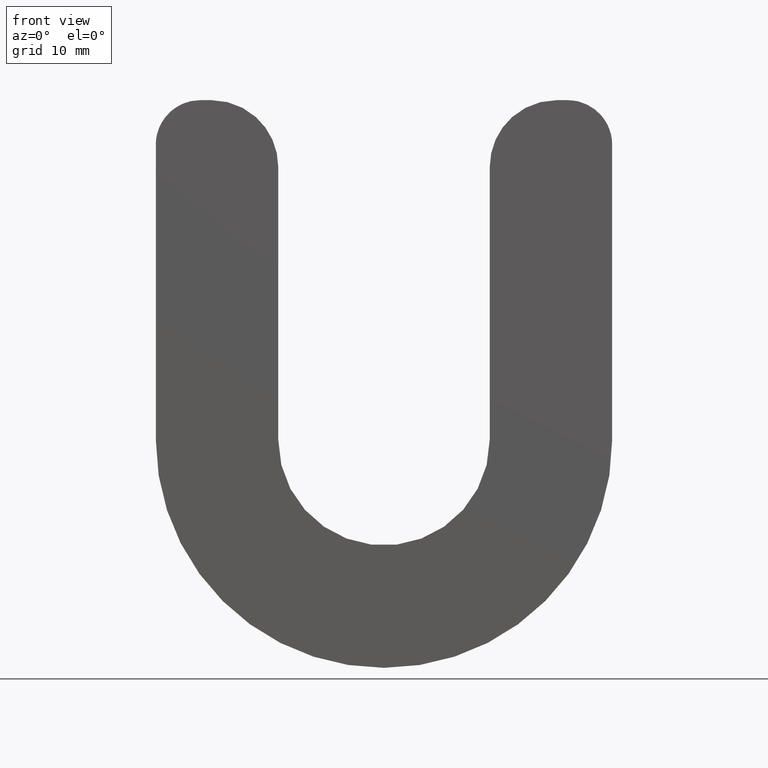
[diagram: clean part render]
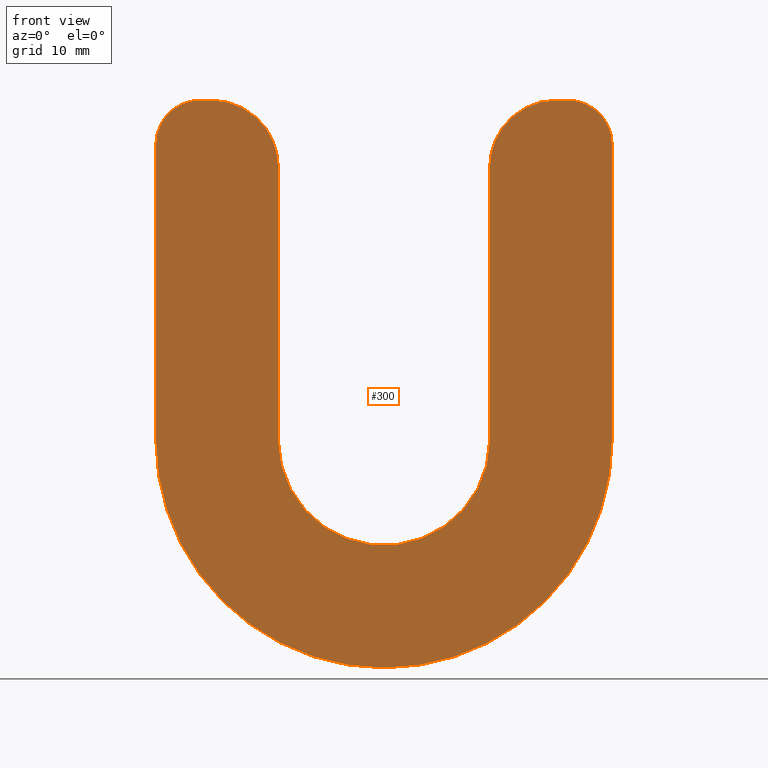
[diagram: same view with one face highlighted and labeled with its STEP entity id]
A machine part, front view. The second image highlights one B-rep face of the part: STEP entity #300.
In plain terms, the highlighted planar face has unit normal (0, 1, 0).
Its self-contained STEP definition (entity closure, byte-faithful):
#5 = CARTESIAN_POINT ( 'NONE',  ( 6.938893903907228400E-015, 0.0000000000000000000, 9.500000000000008900 ) ) ;
#6 = DIRECTION ( 'NONE',  ( 0.0000000000000000000, 0.0000000000000000000, 1.000000000000000000 ) ) ;
#12 = EDGE_LOOP ( 'NONE', ( #1223, #339, #600, #54, #102, #608, #1239, #138, #633, #507, #455, #1152, #1136, #634, #867 ) ) ;
#23 = DIRECTION ( 'NONE',  ( 0.0000000000000000000, 0.0000000000000000000, 1.000000000000000000 ) ) ;
#54 = ORIENTED_EDGE ( 'NONE', *, *, #251, .T. ) ;
#59 = AXIS2_PLACEMENT_3D ( 'NONE', #186, #853, #282 ) ;
#62 = AXIS2_PLACEMENT_3D ( 'NONE', #182, #579, #1257 ) ;
#64 = CARTESIAN_POINT ( 'NONE',  ( -20.49999999999999600, 0.0000000000000000000, 9.500000000000010700 ) ) ;
#65 = LINE ( 'NONE', #137, #360 ) ;
#85 = CIRCLE ( 'NONE', #766, 20.50000000000000400 ) ;
#96 = AXIS2_PLACEMENT_3D ( 'NONE', #316, #997, #408 ) ;
#97 = CARTESIAN_POINT ( 'NONE',  ( 15.50000000000002300, 0.0000000000000000000, 33.99999999999998600 ) ) ;
#102 = ORIENTED_EDGE ( 'NONE', *, *, #473, .T. ) ;
#107 = DIRECTION ( 'NONE',  ( 0.0000000000000000000, 0.0000000000000000000, 1.000000000000000000 ) ) ;
#122 = CARTESIAN_POINT ( 'NONE',  ( 9.500000000000016000, 0.0000000000000000000, 9.500000000000005300 ) ) ;
#137 = CARTESIAN_POINT ( 'NONE',  ( -20.49999999999999600, 0.0000000000000000000, 9.500000000000010700 ) ) ;
#138 = ORIENTED_EDGE ( 'NONE', *, *, #355, .F. ) ;
#159 = VERTEX_POINT ( 'NONE', #64 ) ;
#163 = AXIS2_PLACEMENT_3D ( 'NONE', #1193, #605, #23 ) ;
#173 = EDGE_CURVE ( 'NONE', #178, #1018, #238, .T. ) ;
#178 = VERTEX_POINT ( 'NONE', #669 ) ;
#182 = CARTESIAN_POINT ( 'NONE',  ( 16.50000000000001800, 0.0000000000000000000, 35.99999999999999300 ) ) ;
#186 = CARTESIAN_POINT ( 'NONE',  ( -15.50000000000000200, 0.0000000000000000000, 33.99999999999999300 ) ) ;
#192 = VERTEX_POINT ( 'NONE', #291 ) ;
#211 = AXIS2_PLACEMENT_3D ( 'NONE', #875, #592, #6 ) ;
#223 = VERTEX_POINT ( 'NONE', #945 ) ;
#226 = DIRECTION ( 'NONE',  ( 0.0000000000000000000, 0.0000000000000000000, 1.000000000000000000 ) ) ;
#234 = EDGE_CURVE ( 'NONE', #451, #1018, #935, .T. ) ;
#238 = CIRCLE ( 'NONE', #62, 4.000000000000003600 ) ;
#251 = EDGE_CURVE ( 'NONE', #451, #453, #1011, .T. ) ;
#258 = VERTEX_POINT ( 'NONE', #470 ) ;
#281 = VERTEX_POINT ( 'NONE', #405 ) ;
#282 = DIRECTION ( 'NONE',  ( -2.602085213965211400E-015, 0.0000000000000000000, 1.000000000000000000 ) ) ;
#291 = CARTESIAN_POINT ( 'NONE',  ( -16.49999999999998900, 0.0000000000000000000, 39.99999999999999300 ) ) ;
#300 = ADVANCED_FACE ( 'NONE', ( #396 ), #795, .F. ) ;
#306 = VECTOR ( 'NONE', #715, 1000.000000000000000 ) ;
#316 = CARTESIAN_POINT ( 'NONE',  ( -15.50000000000000200, 0.0000000000000000000, 33.99999999999999300 ) ) ;
#318 = DIRECTION ( 'NONE',  ( 0.0000000000000000000, -0.0000000000000000000, 1.000000000000000000 ) ) ;
#320 = AXIS2_PLACEMENT_3D ( 'NONE', #97, #1180, #502 ) ;
#339 = ORIENTED_EDGE ( 'NONE', *, *, #173, .T. ) ;
#355 = EDGE_CURVE ( 'NONE', #573, #1190, #1085, .T. ) ;
#360 = VECTOR ( 'NONE', #807, 1000.000000000000000 ) ;
#370 = CARTESIAN_POINT ( 'NONE',  ( 20.50000000000001800, 0.0000000000000000000, 40.00000000000002100 ) ) ;
#384 = AXIS2_PLACEMENT_3D ( 'NONE', #5, #689, #107 ) ;
#396 = FACE_OUTER_BOUND ( 'NONE', #12, .T. ) ;
#398 = CARTESIAN_POINT ( 'NONE',  ( 15.49999999999998000, 0.0000000000000000000, 39.99999999999998600 ) ) ;
#405 = CARTESIAN_POINT ( 'NONE',  ( 20.50000000000001100, 0.0000000000000000000, 9.500000000000005300 ) ) ;
#408 = DIRECTION ( 'NONE',  ( 1.734723475976807700E-015, 0.0000000000000000000, 1.000000000000000000 ) ) ;
#433 = VECTOR ( 'NONE', #488, 1000.000000000000000 ) ;
#451 = VERTEX_POINT ( 'NONE', #398 ) ;
#453 = VERTEX_POINT ( 'NONE', #984 ) ;
#455 = ORIENTED_EDGE ( 'NONE', *, *, #1059, .F. ) ;
#462 = VERTEX_POINT ( 'NONE', #1201 ) ;
#470 = CARTESIAN_POINT ( 'NONE',  ( -15.50000000000000200, 0.0000000000000000000, 39.99999999999999300 ) ) ;
#473 = EDGE_CURVE ( 'NONE', #453, #462, #510, .T. ) ;
#488 = DIRECTION ( 'NONE',  ( 1.000000000000000000, -0.0000000000000000000, 6.938893903907232300E-015 ) ) ;
#490 = CARTESIAN_POINT ( 'NONE',  ( 6.938893903907228400E-015, 0.0000000000000000000, 9.500000000000008900 ) ) ;
#493 = CARTESIAN_POINT ( 'NONE',  ( -11.49833936702692600, 0.0000000000000000000, 38.47065008455297200 ) ) ;
#502 = DIRECTION ( 'NONE',  ( 0.0000000000000000000, 0.0000000000000000000, 1.000000000000000000 ) ) ;
#507 = ORIENTED_EDGE ( 'NONE', *, *, #911, .T. ) ;
#510 = CIRCLE ( 'NONE', #320, 5.999999999999998200 ) ;
#515 = CARTESIAN_POINT ( 'NONE',  ( 6.938893903907228400E-015, 0.0000000000000000000, 9.500000000000008900 ) ) ;
#537 = VERTEX_POINT ( 'NONE', #493 ) ;
#573 = VERTEX_POINT ( 'NONE', #606 ) ;
#576 = CARTESIAN_POINT ( 'NONE',  ( 9.500000000000001800, 0.0000000000000000000, 9.500000000000008900 ) ) ;
#579 = DIRECTION ( 'NONE',  ( -0.0000000000000000000, -1.000000000000000000, -0.0000000000000000000 ) ) ;
#585 = DIRECTION ( 'NONE',  ( 0.0000000000000000000, 0.0000000000000000000, 1.000000000000000000 ) ) ;
#592 = DIRECTION ( 'NONE',  ( -0.0000000000000000000, -1.000000000000000000, -0.0000000000000000000 ) ) ;
#600 = ORIENTED_EDGE ( 'NONE', *, *, #234, .F. ) ;
#605 = DIRECTION ( 'NONE',  ( 0.0000000000000000000, 1.000000000000000000, 0.0000000000000000000 ) ) ;
#606 = CARTESIAN_POINT ( 'NONE',  ( -9.499999999999998200, 0.0000000000000000000, 33.99999999999999300 ) ) ;
#608 = ORIENTED_EDGE ( 'NONE', *, *, #1203, .F. ) ;
#613 = EDGE_CURVE ( 'NONE', #192, #223, #1129, .T. ) ;
#616 = CARTESIAN_POINT ( 'NONE',  ( -9.500000000000008900, 0.0000000000000000000, 9.500000000000008900 ) ) ;
#624 = VECTOR ( 'NONE', #1003, 1000.000000000000000 ) ;
#633 = ORIENTED_EDGE ( 'NONE', *, *, #1182, .T. ) ;
#634 = ORIENTED_EDGE ( 'NONE', *, *, #1185, .F. ) ;
#635 = VECTOR ( 'NONE', #757, 1000.000000000000000 ) ;
#667 = CARTESIAN_POINT ( 'NONE',  ( 20.50000000000001100, 0.0000000000000000000, 9.500000000000007100 ) ) ;
#669 = CARTESIAN_POINT ( 'NONE',  ( 20.50000000000001800, 0.0000000000000000000, 35.99999999999998600 ) ) ;
#689 = DIRECTION ( 'NONE',  ( -0.0000000000000000000, -1.000000000000000000, -0.0000000000000000000 ) ) ;
#703 = CIRCLE ( 'NONE', #384, 9.500000000000012400 ) ;
#715 = DIRECTION ( 'NONE',  ( -2.843808977011160800E-016, -0.0000000000000000000, -1.000000000000000000 ) ) ;
#757 = DIRECTION ( 'NONE',  ( 1.000000000000000000, 0.0000000000000000000, 0.0000000000000000000 ) ) ;
#766 = AXIS2_PLACEMENT_3D ( 'NONE', #490, #1166, #585 ) ;
#774 = CARTESIAN_POINT ( 'NONE',  ( 16.49999999999998900, 0.0000000000000000000, 39.99999999999999300 ) ) ;
#791 = CIRCLE ( 'NONE', #59, 5.999999999999998200 ) ;
#795 = PLANE ( 'NONE',  #923 ) ;
#797 = CARTESIAN_POINT ( 'NONE',  ( -16.49999999999998900, 0.0000000000000000000, 35.99999999999999300 ) ) ;
#802 = CIRCLE ( 'NONE', #96, 5.999999999999998200 ) ;
#807 = DIRECTION ( 'NONE',  ( 2.275047181608928600E-016, 0.0000000000000000000, 1.000000000000000000 ) ) ;
#831 = VERTEX_POINT ( 'NONE', #1227 ) ;
#852 = LINE ( 'NONE', #667, #1133 ) ;
#853 = DIRECTION ( 'NONE',  ( -0.0000000000000000000, -1.000000000000000000, -0.0000000000000000000 ) ) ;
#867 = ORIENTED_EDGE ( 'NONE', *, *, #1134, .F. ) ;
#875 = CARTESIAN_POINT ( 'NONE',  ( 15.50000000000002300, 0.0000000000000000000, 33.99999999999998600 ) ) ;
#876 = LINE ( 'NONE', #122, #624 ) ;
#889 = CARTESIAN_POINT ( 'NONE',  ( -9.500000000000001800, 0.0000000000000000000, 9.500000000000008900 ) ) ;
#890 = DIRECTION ( 'NONE',  ( -0.0000000000000000000, -1.000000000000000000, -0.0000000000000000000 ) ) ;
#897 = DIRECTION ( 'NONE',  ( 0.0000000000000000000, 1.000000000000000000, 0.0000000000000000000 ) ) ;
#899 = LINE ( 'NONE', #929, #635 ) ;
#911 = EDGE_CURVE ( 'NONE', #537, #258, #791, .T. ) ;
#923 = AXIS2_PLACEMENT_3D ( 'NONE', #515, #897, #318 ) ;
#929 = CARTESIAN_POINT ( 'NONE',  ( -20.49999999999998900, 0.0000000000000000000, 39.99999999999999300 ) ) ;
#935 = LINE ( 'NONE', #370, #433 ) ;
#945 = CARTESIAN_POINT ( 'NONE',  ( -20.49999999999998900, 0.0000000000000000000, 35.99999999999999300 ) ) ;
#984 = CARTESIAN_POINT ( 'NONE',  ( 11.49833936702682300, 0.0000000000000000000, 38.47065008455285100 ) ) ;
#997 = DIRECTION ( 'NONE',  ( -0.0000000000000000000, -1.000000000000000000, -0.0000000000000000000 ) ) ;
#1003 = DIRECTION ( 'NONE',  ( 2.843808977011165200E-016, 0.0000000000000000000, 1.000000000000000000 ) ) ;
#1009 = EDGE_CURVE ( 'NONE', #1190, #1077, #703, .T. ) ;
#1011 = CIRCLE ( 'NONE', #211, 5.999999999999998200 ) ;
#1018 = VERTEX_POINT ( 'NONE', #774 ) ;
#1059 = EDGE_CURVE ( 'NONE', #192, #258, #899, .T. ) ;
#1064 = CIRCLE ( 'NONE', #163, 20.50000000000000400 ) ;
#1077 = VERTEX_POINT ( 'NONE', #576 ) ;
#1085 = LINE ( 'NONE', #616, #306 ) ;
#1093 = EDGE_CURVE ( 'NONE', #178, #281, #852, .T. ) ;
#1129 = CIRCLE ( 'NONE', #1159, 4.000000000000003600 ) ;
#1133 = VECTOR ( 'NONE', #1255, 1000.000000000000000 ) ;
#1134 = EDGE_CURVE ( 'NONE', #281, #831, #85, .T. ) ;
#1136 = ORIENTED_EDGE ( 'NONE', *, *, #1260, .F. ) ;
#1152 = ORIENTED_EDGE ( 'NONE', *, *, #613, .T. ) ;
#1159 = AXIS2_PLACEMENT_3D ( 'NONE', #797, #890, #226 ) ;
#1166 = DIRECTION ( 'NONE',  ( 0.0000000000000000000, 1.000000000000000000, 0.0000000000000000000 ) ) ;
#1180 = DIRECTION ( 'NONE',  ( -0.0000000000000000000, -1.000000000000000000, -0.0000000000000000000 ) ) ;
#1182 = EDGE_CURVE ( 'NONE', #573, #537, #802, .T. ) ;
#1185 = EDGE_CURVE ( 'NONE', #831, #159, #1064, .T. ) ;
#1190 = VERTEX_POINT ( 'NONE', #889 ) ;
#1193 = CARTESIAN_POINT ( 'NONE',  ( 6.938893903907228400E-015, 0.0000000000000000000, 9.500000000000008900 ) ) ;
#1201 = CARTESIAN_POINT ( 'NONE',  ( 9.499999999999998200, 0.0000000000000000000, 33.99999999999998600 ) ) ;
#1203 = EDGE_CURVE ( 'NONE', #1077, #462, #876, .T. ) ;
#1223 = ORIENTED_EDGE ( 'NONE', *, *, #1093, .F. ) ;
#1227 = CARTESIAN_POINT ( 'NONE',  ( 6.938893903907228400E-015, 0.0000000000000000000, -10.99999999999999600 ) ) ;
#1239 = ORIENTED_EDGE ( 'NONE', *, *, #1009, .F. ) ;
#1255 = DIRECTION ( 'NONE',  ( -2.275047181608926700E-016, -0.0000000000000000000, -1.000000000000000000 ) ) ;
#1257 = DIRECTION ( 'NONE',  ( 0.0000000000000000000, 0.0000000000000000000, 1.000000000000000000 ) ) ;
#1260 = EDGE_CURVE ( 'NONE', #159, #223, #65, .T. ) ;